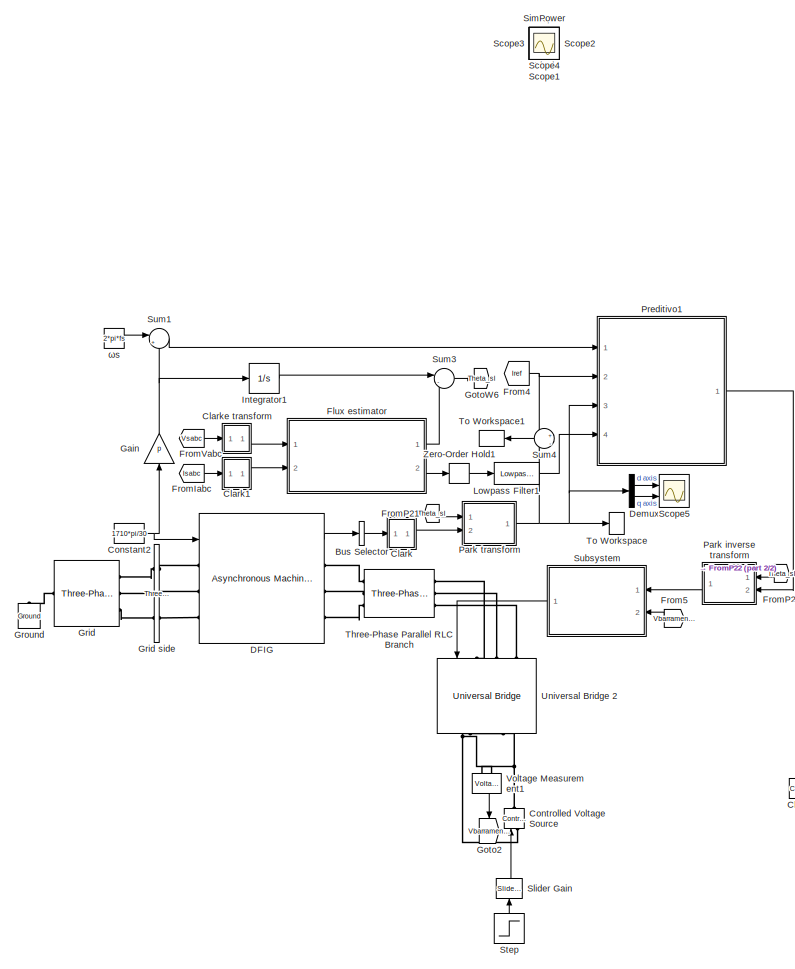
[diagram: root canvas - part 1/2, left side, full height]
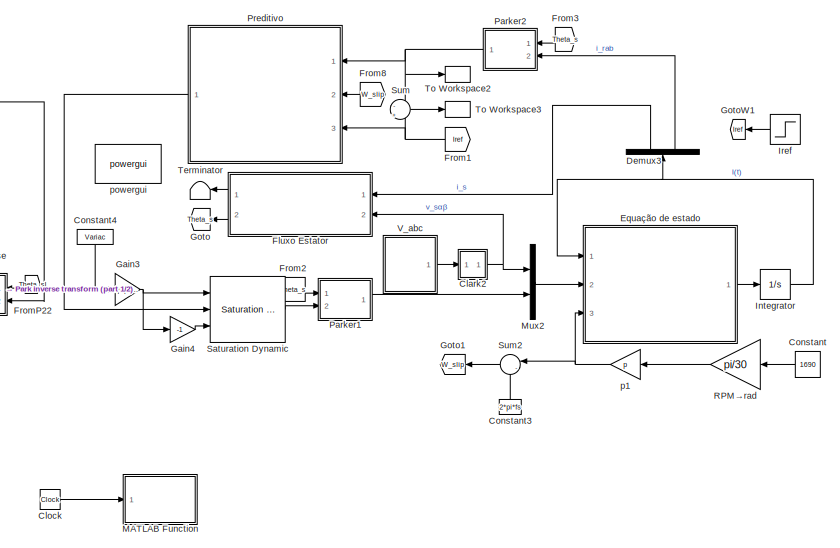
[diagram: root canvas - part 2/2, middle right region]
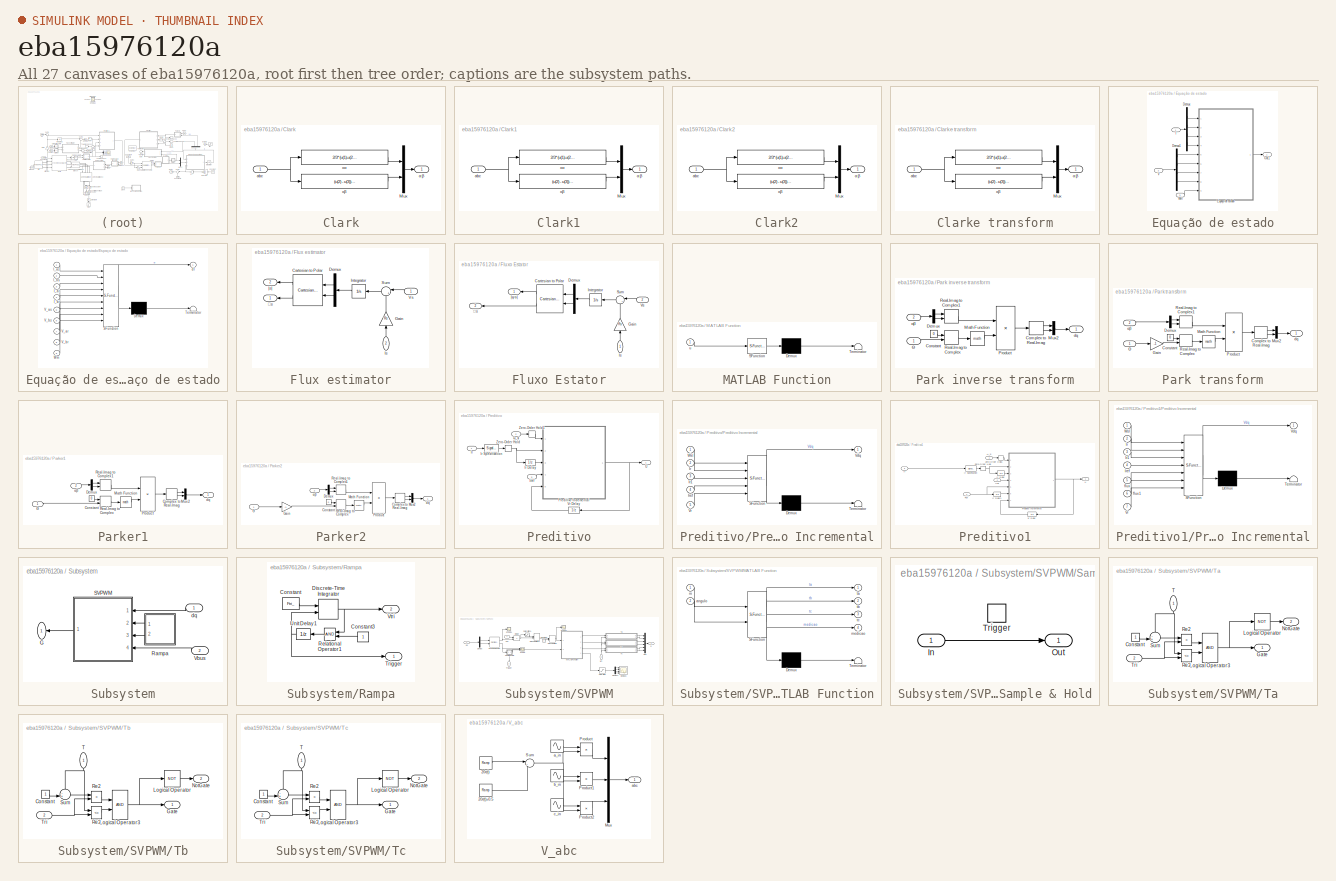
[diagram: thumbnail index - all 27 canvases of the model, root first then tree order]
MODEL slx_eba15976120a
KIND model
CONFIG AbsTol = auto
CONFIG FixedStep = auto
CONFIG MaxStep = auto
CONFIG MinStep = auto
CONFIG RelTol = 1e-3
CONFIG SampleTimeConstraint = Unconstrained
CONFIG Solver = VariableStepAuto
CONFIG SolverMode = Auto
CONFIG SolverName = VariableStepAuto
CONFIG StartTime = 0.0
CONFIG StopTime = 2
WORKSPACE source: MATLAB code (in-file)
WORKSPACE Rs = 1
WORKSPACE Vs = 220
WORKSPACE fs = 60
WORKSPACE p = 2
WORKSPACE T = 1e-4  (= 0.0001)
WORKSPACE Ts = 1e-5  (= 1e-05)
WORKSPACE Ls = 0.2010  (= 0.201)
WORKSPACE Rr = 3.122
WORKSPACE Lr = 0.2010  (= 0.201)
WORKSPACE Lm = 0.1917
WORKSPACE Ps = 3e3  (= 3000)
BLOCK [BusSelector] Bus Selector
  OutputAsBus = on
  OutputSignals = Rotor measurements.Rotor current ir_a (A),Rotor measurements.Rotor current ir_b (A),Rotor measurements.Rotor current ir_c (A)
  Ports = [1, 1]
BLOCK [SubSystem] Clark
  Ports = [1, 1]
  RequestExecContextInheritance = off
  Variant = off
BLOCK [Mux] Clark/Mux
  DisplayOption = bar
  Inputs = 2
  Ports = [2, 1]
BLOCK [Inport] Clark/abc
  IconDisplay = Port number
BLOCK [Fcn] Clark/xα
  Expr = 2/3*(u(1)-u(2)/2-u(3)/2)
BLOCK [Fcn] Clark/xβ
  Expr = (u(2) - u(3))/sqrt(3)
BLOCK [Outport] Clark/αβ
  IconDisplay = Port number
BLOCK [SubSystem] Clark1
  Ports = [1, 1]
  RequestExecContextInheritance = off
  Variant = off
BLOCK [Mux] Clark1/Mux
  DisplayOption = bar
  Inputs = 2
  Ports = [2, 1]
BLOCK [Inport] Clark1/abc
  IconDisplay = Port number
BLOCK [Fcn] Clark1/xα
  Expr = 2/3*(u(1)-u(2)/2-u(3)/2)
BLOCK [Fcn] Clark1/xβ
  Expr = (u(2) - u(3))/sqrt(3)
BLOCK [Outport] Clark1/αβ
  IconDisplay = Port number
BLOCK [SubSystem] Clark2
  Ports = [1, 1]
  RequestExecContextInheritance = off
  Variant = off
BLOCK [Mux] Clark2/Mux
  DisplayOption = bar
  Inputs = 2
  Ports = [2, 1]
BLOCK [Inport] Clark2/abc
  IconDisplay = Port number
BLOCK [Fcn] Clark2/xα
  Expr = 2/3*(u(1)-u(2)/2-u(3)/2)
BLOCK [Fcn] Clark2/xβ
  Expr = (u(2) - u(3))/sqrt(3)
BLOCK [Outport] Clark2/αβ
  IconDisplay = Port number
BLOCK [SubSystem] Clarke transform
  Ports = [1, 1]
  RequestExecContextInheritance = off
  Variant = off
BLOCK [Mux] Clarke transform/Mux
  DisplayOption = bar
  Inputs = 2
  Ports = [2, 1]
BLOCK [Inport] Clarke transform/abc
  IconDisplay = Port number
BLOCK [Fcn] Clarke transform/xα
  Expr = 2/3*(u(1)-u(2)/2-u(3)/2)
BLOCK [Fcn] Clarke transform/xβ
  Expr = (u(2) - u(3))/sqrt(3)
BLOCK [Outport] Clarke transform/αβ
  IconDisplay = Port number
BLOCK [Clock] Clock
  Commented = on
BLOCK [Constant] Constant
  Value = 1690
BLOCK [Constant] Constant2
  Value = 1710*pi/30
BLOCK [Constant] Constant3
  Value = 2*pi*fs
BLOCK [Constant] Constant4
  Value = Variac
BLOCK [Reference] Controlled Voltage Source  REF=powerlib/Electrical
Sources/Controlled Voltage Source
  Ports = [1, 0, 0, 0, 0, 1, 1]
  SourceBlock = powerlib/Electrical\nSources/Controlled Voltage Source
  SourceType = Controlled Voltage Source
BLOCK [Reference] DFIG  REF=powerlib/Machines/Asynchronous Machine
SI Units
  Ports = [1, 1, 0, 0, 0, 3, 3]
  SourceBlock = powerlib/Machines/Asynchronous Machine\nSI Units
  SourceType = Asynchronous Machine
BLOCK [Demux] Demux
  DisplayOption = bar
  Outputs = 2
  Ports = [1, 2]
BLOCK [Demux] Demux3
  DisplayOption = bar
  Outputs = 2
  Ports = [1, 2]
BLOCK [SubSystem] Equação de estado
  Ports = [3, 1]
  RequestExecContextInheritance = off
  Variant = off
BLOCK [Demux] Equação de estado/Demux
  DisplayOption = bar
  Ports = [1, 4]
BLOCK [Demux] Equação de estado/Demux1
  DisplayOption = bar
  Ports = [1, 4]
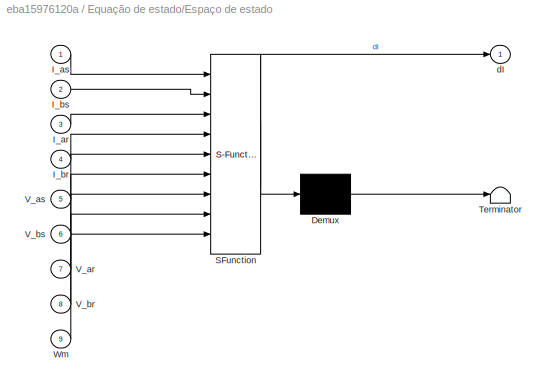
BLOCK [SubSystem] Equação de estado/Espaço de estado
  ErrorFcn = Stateflow.Translate.translate
  PermitHierarchicalResolution = ExplicitOnly
  Ports = [9, 1]
  RequestExecContextInheritance = off
  SFBlockType = MATLAB Function
  TreatAsAtomicUnit = on
  Variant = off
BLOCK [Demux] Equação de estado/Espaço de estado/ Demux 
  Outputs = 1
  Ports = [1, 1]
BLOCK [S-Function] Equação de estado/Espaço de estado/ SFunction 
  EnableBusSupport = on
  FunctionName = sf_sfun
  Parameters = Lm,Lr,Ls,Rr,Rs,dLm,dRr
  PortCounts = [9 2]
  Ports = [9, 2]
  SFunctionDeploymentMode = off
  Tag = Stateflow S-Function dfig 1
BLOCK [Terminator] Equação de estado/Espaço de estado/ Terminator 
BLOCK [Inport] Equação de estado/Espaço de estado/I_ar
  IconDisplay = Port number
  Port = 3
BLOCK [Inport] Equação de estado/Espaço de estado/I_as
  IconDisplay = Port number
BLOCK [Inport] Equação de estado/Espaço de estado/I_br
  IconDisplay = Port number
  Port = 4
BLOCK [Inport] Equação de estado/Espaço de estado/I_bs
  IconDisplay = Port number
  Port = 2
BLOCK [Inport] Equação de estado/Espaço de estado/V_ar
  IconDisplay = Port number
  Port = 7
BLOCK [Inport] Equação de estado/Espaço de estado/V_as
  IconDisplay = Port number
  Port = 5
BLOCK [Inport] Equação de estado/Espaço de estado/V_br
  IconDisplay = Port number
  Port = 8
BLOCK [Inport] Equação de estado/Espaço de estado/V_bs
  IconDisplay = Port number
  Port = 6
BLOCK [Inport] Equação de estado/Espaço de estado/Wm
  IconDisplay = Port number
  Port = 9
BLOCK [Outport] Equação de estado/Espaço de estado/dI
  IconDisplay = Port number
BLOCK [Inport] Equação de estado/I
  IconDisplay = Port number
BLOCK [Outport] Equação de estado/Out1
  IconDisplay = Port number
BLOCK [Inport] Equação de estado/V
  IconDisplay = Port number
  Port = 2
BLOCK [Inport] Equação de estado/Wm
  IconDisplay = Port number
  Port = 3
BLOCK [SubSystem] Flux estimator
  Ports = [2, 2]
  RequestExecContextInheritance = off
  Variant = off
BLOCK [Reference] Flux estimator/Cartesian to Polar  REF=simulink_extras/Transformations/Cartesian to
Polar
  Ports = [2, 2]
  SourceBlock = simulink_extras/Transformations/Cartesian to\nPolar
  SourceType = Cart2Polar
BLOCK [Demux] Flux estimator/Demux
  DisplayOption = bar
  Outputs = 2
  Ports = [1, 2]
BLOCK [Gain] Flux estimator/Gain
  Gain = Rs
  OutDataTypeStr = Inherit: Inherit via internal rule
  ParamDataTypeStr = Inherit: Inherit via internal rule
  SaturateOnIntegerOverflow = off
BLOCK [Integrator] Flux estimator/Integrator
  Ports = [1, 1]
BLOCK [Inport] Flux estimator/Is
  IconDisplay = Port number
  Port = 2
BLOCK [Sum] Flux estimator/Sum
  IconShape = round
  InputSameDT = off
  Inputs = |+-
  OutDataTypeStr = Inherit: Inherit via internal rule
  Ports = [2, 1]
  SaturateOnIntegerOverflow = off
BLOCK [Inport] Flux estimator/Vs
  IconDisplay = Port number
BLOCK [Outport] Flux estimator/|s|
  IconDisplay = Port number
  Port = 2
BLOCK [Outport] Flux estimator/∠s
  IconDisplay = Port number
BLOCK [SubSystem] Fluxo Estator
  Ports = [2, 2]
  RequestExecContextInheritance = off
  Variant = off
BLOCK [Reference] Fluxo Estator/Cartesian to Polar  REF=simulink_extras/Transformations/Cartesian to
Polar
  Ports = [2, 2]
  SourceBlock = simulink_extras/Transformations/Cartesian to\nPolar
  SourceType = Cart2Polar
BLOCK [Demux] Fluxo Estator/Demux
  DisplayOption = bar
  Outputs = 2
  Ports = [1, 2]
BLOCK [Gain] Fluxo Estator/Gain
  Gain = Rs
  OutDataTypeStr = Inherit: Inherit via internal rule
  ParamDataTypeStr = Inherit: Inherit via internal rule
  SaturateOnIntegerOverflow = off
BLOCK [Integrator] Fluxo Estator/Integrator
  Ports = [1, 1]
BLOCK [Inport] Fluxo Estator/Is
  IconDisplay = Port number
BLOCK [Sum] Fluxo Estator/Sum
  IconShape = round
  InputSameDT = off
  Inputs = |+-
  OutDataTypeStr = Inherit: Inherit via internal rule
  Ports = [2, 1]
  SaturateOnIntegerOverflow = off
BLOCK [Inport] Fluxo Estator/Vs
  IconDisplay = Port number
  Port = 2
BLOCK [Outport] Fluxo Estator/|ψs|
  IconDisplay = Port number
BLOCK [Outport] Fluxo Estator/∠s
  IconDisplay = Port number
  Port = 2
BLOCK [From] From1
  GotoTag = Iref
BLOCK [From] From2
  GotoTag = Theta_s
BLOCK [From] From3
  GotoTag = Theta_s
BLOCK [From] From4
  GotoTag = Iref
BLOCK [From] From5
  GotoTag = Vbarramento
BLOCK [From] From8
  GotoTag = W_slip
BLOCK [From] FromIabc
  GotoTag = Isabc
  TagVisibility = global
BLOCK [From] FromP21
  GotoTag = Theta_sl
  IconDisplay = Signal name
BLOCK [From] FromP22
  GotoTag = Theta_sl
  IconDisplay = Signal name
BLOCK [From] FromVabc
  GotoTag = Vsabc
  TagVisibility = global
BLOCK [Gain] Gain
  Gain = p
  OutDataTypeStr = Inherit: Inherit via internal rule
  ParamDataTypeStr = Inherit: Inherit via internal rule
  SaturateOnIntegerOverflow = off
BLOCK [Gain] Gain3
  Gain = sqrt(3)*pi/3
  OutDataTypeStr = Inherit: Inherit via internal rule
  ParamDataTypeStr = Inherit: Inherit via internal rule
  SaturateOnIntegerOverflow = off
BLOCK [Gain] Gain4
  Gain = -1
  OutDataTypeStr = Inherit: Inherit via internal rule
  ParamDataTypeStr = Inherit: Inherit via internal rule
  SaturateOnIntegerOverflow = off
BLOCK [Goto] Goto
  GotoTag = Theta_s
BLOCK [Goto] Goto1
  GotoTag = W_slip
BLOCK [Goto] Goto2
  GotoTag = Vbarramento
BLOCK [Goto] GotoW1
  GotoTag = Iref
BLOCK [Goto] GotoW6
  GotoTag = Theta_sl
BLOCK [Reference] Grid  REF=powerlib/Electrical
Sources/Three-Phase
Programmable
Voltage Source
  Ports = [0, 0, 0, 0, 0, 1, 3]
  SourceBlock = powerlib/Electrical\nSources/Three-Phase\nProgrammable\nVoltage Source
  SourceType = Three-Phase Programmable Voltage Source
BLOCK [Reference] Grid side  REF=powerlib/Measurements/Three-Phase
V-I Measurement
  Ports = [0, 0, 0, 0, 0, 3, 3]
  SourceBlock = powerlib/Measurements/Three-Phase\nV-I Measurement
  SourceType = Three-Phase VI Measurement
BLOCK [Reference] Ground  REF=powerlib/Elements/Ground
  Ports = [0, 0, 0, 0, 0, 1]
  SourceBlock = powerlib/Elements/Ground
  SourceType = Ground
BLOCK [Scope] Ideal
  IOType = viewer
  Ports = []
  ScopeSpecificationString = Simulink.scopes.TimeScopeBlockCfg('CurrentConfiguration', extmgr.ConfigurationSet(extmgr.Configuration('Core','General UI',true),extmgr.Configuration('Core','Source UI',true),extmgr.Configuration('Sources','WiredSimulink',true,'DataLoggingVariableName','ScopeData1'),extmgr.Configuration('Visuals','Time Domain',true,'SerializedDisplays',{struct('MinYLimReal','-10.00000','MaxYLimReal','10.00000','YL...<+1962ch>
BLOCK [Integrator] Integrator
  LimitOutput = on
  LowerSaturationLimit = -1e5
  Ports = [1, 1]
  UpperSaturationLimit = 1e5
BLOCK [Integrator] Integrator1
  Ports = [1, 1]
BLOCK [Step] Iref
  After = StepFinal
  Before = StepInit
  SampleTime = 0
  Time = StepTime
BLOCK [Reference] Lowpass Filter1  REF=dspfdesign/Lowpass Filter
  Ports = [1, 1]
  SourceBlock = dspfdesign/Lowpass Filter
  SourceType = dsp.LowpassFilter
BLOCK [SubSystem] MATLAB Function
  Commented = on
  ErrorFcn = Stateflow.Translate.translate
  PermitHierarchicalResolution = ExplicitOnly
  Ports = [1]
  RequestExecContextInheritance = off
  SFBlockType = MATLAB Function
  TreatAsAtomicUnit = on
  Variant = off
BLOCK [Demux] MATLAB Function/ Demux 
  Outputs = 1
  Ports = [1, 1]
BLOCK [S-Function] MATLAB Function/ SFunction 
  EnableBusSupport = on
  FunctionName = sf_sfun
  PortCounts = [1 1]
  Ports = [1, 1]
  SFunctionDeploymentMode = off
  Tag = Stateflow S-Function dfig 5
BLOCK [Terminator] MATLAB Function/ Terminator 
BLOCK [Inport] MATLAB Function/u
  IconDisplay = Port number
BLOCK [Mux] Mux2
  DisplayOption = bar
  Inputs = 2
  Ports = [2, 1]
BLOCK [SubSystem] Park inverse transform
  Ports = [2, 1]
  RequestExecContextInheritance = off
  Variant = off
BLOCK [ComplexToRealImag] Park inverse transform/Complex to Real-Imag
  Ports = [1, 2]
BLOCK [Constant] Park inverse transform/Constant
  Value = 0
BLOCK [Demux] Park inverse transform/Demux
  DisplayOption = bar
  Outputs = 2
  Ports = [1, 2]
BLOCK [Math] Park inverse transform/Math Function
  Ports = [1, 1]
BLOCK [Mux] Park inverse transform/Mux2
  DisplayOption = bar
  Inputs = 2
  Ports = [2, 1]
BLOCK [Product] Park inverse transform/Product
  InputSameDT = off
  OutDataTypeStr = Inherit: Inherit via internal rule
  Ports = [2, 1]
  RndMeth = Floor
  SaturateOnIntegerOverflow = off
BLOCK [RealImagToComplex] Park inverse transform/Real-Imag to Complex
  Ports = [2, 1]
BLOCK [RealImagToComplex] Park inverse transform/Real-Imag to Complex1
  Ports = [2, 1]
BLOCK [Outport] Park inverse transform/dq
  IconDisplay = Port number
BLOCK [Inport] Park inverse transform/Θ
  IconDisplay = Port number
BLOCK [Inport] Park inverse transform/αβ
  IconDisplay = Port number
  Port = 2
BLOCK [SubSystem] Park transform
  Ports = [2, 1]
  RequestExecContextInheritance = off
  Variant = off
BLOCK [ComplexToRealImag] Park transform/Complex to Real-Imag
  Ports = [1, 2]
BLOCK [Constant] Park transform/Constant
  Value = 0
BLOCK [Demux] Park transform/Demux
  DisplayOption = bar
  Outputs = 2
  Ports = [1, 2]
BLOCK [Gain] Park transform/Gain
  Gain = -1
  OutDataTypeStr = Inherit: Inherit via internal rule
  ParamDataTypeStr = Inherit: Inherit via internal rule
  SaturateOnIntegerOverflow = off
BLOCK [Math] Park transform/Math Function
  Ports = [1, 1]
BLOCK [Mux] Park transform/Mux2
  DisplayOption = bar
  Inputs = 2
  Ports = [2, 1]
BLOCK [Product] Park transform/Product
  InputSameDT = off
  OutDataTypeStr = Inherit: Inherit via internal rule
  Ports = [2, 1]
  RndMeth = Floor
  SaturateOnIntegerOverflow = off
BLOCK [RealImagToComplex] Park transform/Real-Imag to Complex
  Ports = [2, 1]
BLOCK [RealImagToComplex] Park transform/Real-Imag to Complex1
  Ports = [2, 1]
BLOCK [Outport] Park transform/dq
  IconDisplay = Port number
BLOCK [Inport] Park transform/Θ
  IconDisplay = Port number
BLOCK [Inport] Park transform/αβ
  IconDisplay = Port number
  Port = 2
BLOCK [SubSystem] Parker1
  Ports = [2, 1]
  RequestExecContextInheritance = off
  Variant = off
BLOCK [ComplexToRealImag] Parker1/Complex to Real-Imag
  Ports = [1, 2]
BLOCK [Constant] Parker1/Constant
  Value = 0
BLOCK [Demux] Parker1/Demux
  DisplayOption = bar
  Outputs = 2
  Ports = [1, 2]
BLOCK [Math] Parker1/Math Function
  Ports = [1, 1]
BLOCK [Mux] Parker1/Mux2
  DisplayOption = bar
  Inputs = 2
  Ports = [2, 1]
BLOCK [Product] Parker1/Product
  InputSameDT = off
  OutDataTypeStr = Inherit: Inherit via internal rule
  Ports = [2, 1]
  RndMeth = Floor
  SaturateOnIntegerOverflow = off
BLOCK [RealImagToComplex] Parker1/Real-Imag to Complex
  Ports = [2, 1]
BLOCK [RealImagToComplex] Parker1/Real-Imag to Complex1
  Ports = [2, 1]
BLOCK [Outport] Parker1/dq
  IconDisplay = Port number
BLOCK [Inport] Parker1/Θ
  IconDisplay = Port number
BLOCK [Inport] Parker1/αβ
  IconDisplay = Port number
  Port = 2
BLOCK [SubSystem] Parker2
  Ports = [2, 1]
  RequestExecContextInheritance = off
  Variant = off
BLOCK [ComplexToRealImag] Parker2/Complex to Real-Imag
  Ports = [1, 2]
BLOCK [Constant] Parker2/Constant
  Value = 0
BLOCK [Demux] Parker2/Demux
  DisplayOption = bar
  Outputs = 2
  Ports = [1, 2]
BLOCK [Gain] Parker2/Gain
  Gain = -1
  OutDataTypeStr = Inherit: Inherit via internal rule
  ParamDataTypeStr = Inherit: Inherit via internal rule
  SaturateOnIntegerOverflow = off
BLOCK [Math] Parker2/Math Function
  Ports = [1, 1]
BLOCK [Mux] Parker2/Mux2
  DisplayOption = bar
  Inputs = 2
  Ports = [2, 1]
BLOCK [Product] Parker2/Product
  InputSameDT = off
  OutDataTypeStr = Inherit: Inherit via internal rule
  Ports = [2, 1]
  RndMeth = Floor
  SaturateOnIntegerOverflow = off
BLOCK [RealImagToComplex] Parker2/Real-Imag to Complex
  Ports = [2, 1]
BLOCK [RealImagToComplex] Parker2/Real-Imag to Complex1
  Ports = [2, 1]
BLOCK [Outport] Parker2/dq
  IconDisplay = Port number
BLOCK [Inport] Parker2/Θ
  IconDisplay = Port number
BLOCK [Inport] Parker2/αβ
  IconDisplay = Port number
  Port = 2
BLOCK [SubSystem] Preditivo
  Ports = [3, 1]
  RequestExecContextInheritance = off
  Variant = off
BLOCK [Inport] Preditivo/ ω_sl
  IconDisplay = Port number
  Port = 2
BLOCK [Inport] Preditivo/Ir
  IconDisplay = Port number
BLOCK [UnitDelay] Preditivo/Ir Delay
  SampleTime = -1
BLOCK [SignalSpecification] Preditivo/Ir Specification
  Dimensions = 2
BLOCK [Inport] Preditivo/Iref
  IconDisplay = Port number
  Port = 3
BLOCK [SubSystem] Preditivo/Preditivo Incremental
  ErrorFcn = Stateflow.Translate.translate
  PermitHierarchicalResolution = ExplicitOnly
  Ports = [5, 1]
  RequestExecContextInheritance = off
  SFBlockType = MATLAB Function
  SystemSampleTime = T
  TreatAsAtomicUnit = on
  Variant = off
BLOCK [Demux] Preditivo/Preditivo Incremental/ Demux 
  Outputs = 1
  Ports = [1, 1]
BLOCK [S-Function] Preditivo/Preditivo Incremental/ SFunction 
  EnableBusSupport = on
  FunctionName = sf_sfun
  Parameters = Lm,Lr,Ls,Nu,Ny,Rr,T,Wup,Wyp
  PortCounts = [5 2]
  Ports = [5, 2]
  SFunctionDeploymentMode = off
  Tag = Stateflow S-Function dfig 3
BLOCK [Terminator] Preditivo/Preditivo Incremental/ Terminator 
BLOCK [Inport] Preditivo/Preditivo Incremental/Ir
  IconDisplay = Port number
  Port = 2
BLOCK [Inport] Preditivo/Preditivo Incremental/Ir1
  IconDisplay = Port number
  Port = 3
BLOCK [Inport] Preditivo/Preditivo Incremental/Iref
  IconDisplay = Port number
  Port = 4
BLOCK [Outport] Preditivo/Preditivo Incremental/Vdq
  IconDisplay = Port number
BLOCK [Inport] Preditivo/Preditivo Incremental/Vr
  IconDisplay = Port number
  Port = 5
BLOCK [Inport] Preditivo/Preditivo Incremental/Wsl
  IconDisplay = Port number
BLOCK [Outport] Preditivo/U
  IconDisplay = Port number
BLOCK [UnitDelay] Preditivo/Vr Delay
  SampleTime = -1
BLOCK [ZeroOrderHold] Preditivo/Zero-Order Hold
  SampleTime = T
BLOCK [ZeroOrderHold] Preditivo/Zero-Order Hold1
  SampleTime = T
BLOCK [SubSystem] Preditivo1
  Ports = [4, 1]
  RequestExecContextInheritance = off
  Variant = off
BLOCK [Inport] Preditivo1/ ω_sl
  IconDisplay = Port number
BLOCK [Inport] Preditivo1/Flux
  IconDisplay = Port number
  Port = 4
BLOCK [Inport] Preditivo1/Ir
  IconDisplay = Port number
  Port = 3
BLOCK [UnitDelay] Preditivo1/Ir Delay
  SampleTime = -1
BLOCK [UnitDelay] Preditivo1/Ir Delay1
  SampleTime = -1
BLOCK [SignalSpecification] Preditivo1/Ir Specification
  Dimensions = 2
BLOCK [Inport] Preditivo1/Iref
  IconDisplay = Port number
  Port = 2
BLOCK [SubSystem] Preditivo1/Preditivo Incremental
  ErrorFcn = Stateflow.Translate.translate
  PermitHierarchicalResolution = ExplicitOnly
  Ports = [7, 1]
  RequestExecContextInheritance = off
  SFBlockType = MATLAB Function
  SystemSampleTime = T
  TreatAsAtomicUnit = on
  Variant = off
BLOCK [Demux] Preditivo1/Preditivo Incremental/ Demux 
  Outputs = 1
  Ports = [1, 1]
BLOCK [S-Function] Preditivo1/Preditivo Incremental/ SFunction 
  EnableBusSupport = on
  FunctionName = sf_sfun
  Parameters = Lm,Lr,Ls,Nu,Ny,Rr,T,Wup,Wyp
  PortCounts = [7 2]
  Ports = [7, 2]
  SFunctionDeploymentMode = off
  Tag = Stateflow S-Function dfig 4
BLOCK [Terminator] Preditivo1/Preditivo Incremental/ Terminator 
BLOCK [Inport] Preditivo1/Preditivo Incremental/Ir
  IconDisplay = Port number
  Port = 2
BLOCK [Inport] Preditivo1/Preditivo Incremental/Ir1
  IconDisplay = Port number
  Port = 3
BLOCK [Inport] Preditivo1/Preditivo Incremental/Iref
  IconDisplay = Port number
  Port = 4
BLOCK [Outport] Preditivo1/Preditivo Incremental/Vdq
  IconDisplay = Port number
BLOCK [Inport] Preditivo1/Preditivo Incremental/Vr
  IconDisplay = Port number
  Port = 7
BLOCK [Inport] Preditivo1/Preditivo Incremental/Wsl
  IconDisplay = Port number
BLOCK [Inport] Preditivo1/Preditivo Incremental/flux
  IconDisplay = Port number
  Port = 5
BLOCK [Inport] Preditivo1/Preditivo Incremental/flux1
  IconDisplay = Port number
  Port = 6
BLOCK [Outport] Preditivo1/U
  IconDisplay = Port number
BLOCK [UnitDelay] Preditivo1/Vr Delay
  SampleTime = -1
BLOCK [ZeroOrderHold] Preditivo1/Zero-Order Hold
  SampleTime = T
BLOCK [ZeroOrderHold] Preditivo1/Zero-Order Hold1
  SampleTime = T
BLOCK [Gain] RPM→rad
  Gain = pi/30
  OutDataTypeStr = Inherit: Inherit via internal rule
  ParamDataTypeStr = Inherit: Inherit via internal rule
  SaturateOnIntegerOverflow = off
BLOCK [Reference] Saturation Dynamic  REF=simulink/Discontinuities/Saturation
Dynamic
  Ports = [3, 1]
  SourceBlock = simulink/Discontinuities/Saturation\nDynamic
  SourceType = Saturation Dynamic
BLOCK [Scope] Scope
  IOType = viewer
  Ports = []
  ScopeSpecificationString = Simulink.scopes.TimeScopeBlockCfg('CurrentConfiguration', extmgr.ConfigurationSet(extmgr.Configuration('Core','General UI',true),extmgr.Configuration('Core','Source UI',true),extmgr.Configuration('Sources','WiredSimulink',true,'DataLoggingVariableName','ScopeData1'),extmgr.Configuration('Visuals','Time Domain',true,'SerializedDisplays',{struct('MinYLimReal','-0.12065','MaxYLimReal','1.08585','YLab...<+1403ch>
BLOCK [Scope] Scope1
  IOType = viewer
  Ports = []
  ScopeSpecificationString = Simulink.scopes.TimeScopeBlockCfg('CurrentConfiguration', extmgr.ConfigurationSet(extmgr.Configuration('Core','General UI',true),extmgr.Configuration('Core','Source UI',true),extmgr.Configuration('Sources','WiredSimulink',true,'DataLoggingVariableName','ScopeData2'),extmgr.Configuration('Visuals','Time Domain',true,'SerializedDisplays',{struct('MinYLimReal','-0.58067','MaxYLimReal','5.22605','YLab...<+1430ch>
BLOCK [Scope] Scope2
  IOType = viewer
  Ports = []
  ScopeSpecificationString = Simulink.scopes.TimeScopeBlockCfg('CurrentConfiguration', extmgr.ConfigurationSet(extmgr.Configuration('Core','General UI',true),extmgr.Configuration('Core','Source UI',true),extmgr.Configuration('Sources','WiredSimulink',true,'DataLoggingVariableName','ScopeData3'),extmgr.Configuration('Visuals','Time Domain',true,'SerializedDisplays',{struct('MinYLimReal','-134701.21577','MaxYLimReal','367101.14...<+1443ch>
BLOCK [Scope] Scope3
  IOType = viewer
  Ports = []
  ScopeSpecificationString = Simulink.scopes.TimeScopeBlockCfg('CurrentConfiguration', extmgr.ConfigurationSet(extmgr.Configuration('Core','General UI',true),extmgr.Configuration('Core','Source UI',true),extmgr.Configuration('Sources','WiredSimulink',true,'DataLoggingVariableName','ScopeData4'),extmgr.Configuration('Visuals','Time Domain',true,'SerializedDisplays',{struct('MinYLimReal','-62.24076','MaxYLimReal','58.27322','YL...<+1457ch>
BLOCK [Scope] Scope4
  IOType = viewer
  Ports = []
  ScopeSpecificationString = Simulink.scopes.TimeScopeBlockCfg('CurrentConfiguration', extmgr.ConfigurationSet(extmgr.Configuration('Core','General UI',true),extmgr.Configuration('Core','Source UI',true),extmgr.Configuration('Sources','WiredSimulink',true,'DataLoggingVariableName','ScopeData5'),extmgr.Configuration('Visuals','Time Domain',true,'SerializedDisplays',{struct('MinYLimReal','833.98419','MaxYLimReal','6140.49161','...<+1472ch>
BLOCK [Scope] Scope5
  NumInputPorts = 2
  Ports = [2]
  ScopeSpecificationString = Simulink.scopes.TimeScopeBlockCfg('CurrentConfiguration', extmgr.ConfigurationSet(extmgr.Configuration('Core','General UI',true),extmgr.Configuration('Core','Source UI',true),extmgr.Configuration('Sources','WiredSimulink',true,'DataLoggingVariableName','ScopeData1'),extmgr.Configuration('Visuals','Time Domain',true,'SerializedDisplays',{struct('MinYLimReal','0.5338','MaxYLimReal','3.77351','YLabel...<+2020ch>
BLOCK [Scope] SimPower
  IOType = viewer
  Ports = []
  ScopeSpecificationString = Simulink.scopes.TimeScopeBlockCfg('CurrentConfiguration', extmgr.ConfigurationSet(extmgr.Configuration('Core','General UI',true),extmgr.Configuration('Core','Source UI',true),extmgr.Configuration('Sources','WiredSimulink',true,'DataLoggingVariableName','ScopeData1'),extmgr.Configuration('Visuals','Time Domain',true,'SerializedDisplays',{struct('MinYLimReal','-0.79449','MaxYLimReal','2.37954','YLab...<+2072ch>
BLOCK [Reference] Slider Gain  REF=simulink/Math
Operations/Slider
Gain
  Ports = [1, 1]
  SourceBlock = simulink/Math\nOperations/Slider\nGain
  SourceType = Slider Gain
BLOCK [Step] Step
  Before = 1e-4
  SampleTime = 0
  Time = 0
BLOCK [SubSystem] Subsystem
  Ports = [2, 1]
  RequestExecContextInheritance = off
  Variant = off
BLOCK [Outport] Subsystem/G
  IconDisplay = Port number
BLOCK [SubSystem] Subsystem/Rampa
  Ports = [0, 2]
  RequestExecContextInheritance = off
  Variant = off
BLOCK [Constant] Subsystem/Rampa/Constant
  Value = Ftri_
BLOCK [Constant] Subsystem/Rampa/Constant3
BLOCK [DiscreteIntegrator] Subsystem/Rampa/Discrete-Time Integrator
  ExternalReset = rising
  ICPrevOutput = DiscIntNeverNeededParam
  ICPrevScaledInput = DiscIntNeverNeededParam
  InitialConditionSetting = State (most efficient)
  Ports = [2, 1]
  SampleTime = Ts
BLOCK [RelationalOperator] Subsystem/Rampa/Relational Operator1
  Ports = [2, 1]
BLOCK [Outport] Subsystem/Rampa/Trigger
  IconDisplay = Port number
BLOCK [UnitDelay] Subsystem/Rampa/Unit Delay1
  SampleTime = Ts
BLOCK [Outport] Subsystem/Rampa/Vtri
  IconDisplay = Port number
  Port = 2
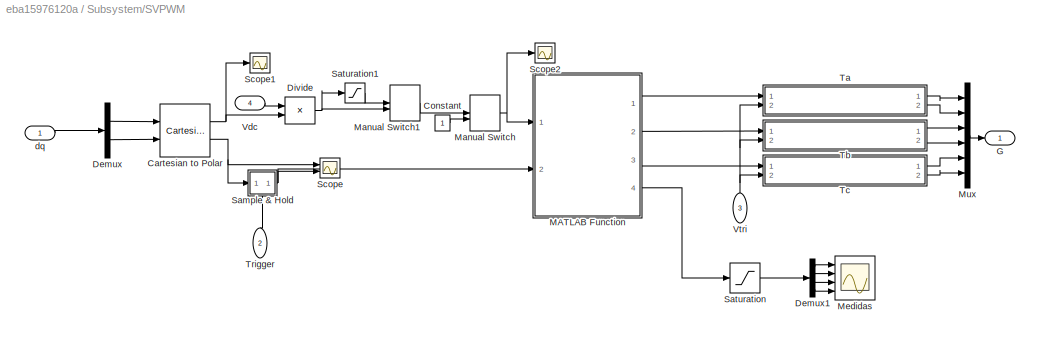
BLOCK [SubSystem] Subsystem/SVPWM
  Ports = [4, 1]
  RequestExecContextInheritance = off
  Variant = off
BLOCK [Reference] Subsystem/SVPWM/Cartesian to Polar  REF=simulink_extras/Transformations/Cartesian to
Polar
  Ports = [2, 2]
  SourceBlock = simulink_extras/Transformations/Cartesian to\nPolar
  SourceType = Cart2Polar
BLOCK [Constant] Subsystem/SVPWM/Constant
BLOCK [Demux] Subsystem/SVPWM/Demux
  DisplayOption = bar
  Outputs = 2
  Ports = [1, 2]
BLOCK [Demux] Subsystem/SVPWM/Demux1
  DisplayOption = bar
  Ports = [1, 4]
BLOCK [Product] Subsystem/SVPWM/Divide
  InputSameDT = off
  Inputs = /*
  OutDataTypeStr = Inherit: Inherit via internal rule
  Ports = [2, 1]
  RndMeth = Floor
  SaturateOnIntegerOverflow = off
BLOCK [Outport] Subsystem/SVPWM/G
  IconDisplay = Port number
BLOCK [SubSystem] Subsystem/SVPWM/MATLAB Function
  ErrorFcn = Stateflow.Translate.translate
  PermitHierarchicalResolution = ExplicitOnly
  Ports = [2, 4]
  RequestExecContextInheritance = off
  SFBlockType = MATLAB Function
  TreatAsAtomicUnit = on
  Variant = off
BLOCK [Demux] Subsystem/SVPWM/MATLAB Function/ Demux 
  Outputs = 1
  Ports = [1, 1]
BLOCK [S-Function] Subsystem/SVPWM/MATLAB Function/ SFunction 
  EnableBusSupport = on
  FunctionName = sf_sfun
  PortCounts = [2 5]
  Ports = [2, 5]
  SFunctionDeploymentMode = off
  Tag = Stateflow S-Function dfig 2
BLOCK [Terminator] Subsystem/SVPWM/MATLAB Function/ Terminator 
BLOCK [Inport] Subsystem/SVPWM/MATLAB Function/angulo
  IconDisplay = Port number
  Port = 2
BLOCK [Inport] Subsystem/SVPWM/MATLAB Function/m
  IconDisplay = Port number
BLOCK [Outport] Subsystem/SVPWM/MATLAB Function/medicao
  IconDisplay = Port number
  Port = 4
BLOCK [Outport] Subsystem/SVPWM/MATLAB Function/ta
  IconDisplay = Port number
BLOCK [Outport] Subsystem/SVPWM/MATLAB Function/tb
  IconDisplay = Port number
  Port = 2
BLOCK [Outport] Subsystem/SVPWM/MATLAB Function/tc
  IconDisplay = Port number
  Port = 3
BLOCK [ManualSwitch] Subsystem/SVPWM/Manual Switch
BLOCK [ManualSwitch] Subsystem/SVPWM/Manual Switch1
  CurrentSetting = 0
BLOCK [Scope] Subsystem/SVPWM/Medidas
  NumInputPorts = 4
  Ports = [4]
  ScopeSpecificationString = Simulink.scopes.TimeScopeBlockCfg('CurrentConfiguration', extmgr.ConfigurationSet(extmgr.Configuration('Core','General UI',true),extmgr.Configuration('Core','Source UI',true),extmgr.Configuration('Sources','WiredSimulink',true,'DataLoggingVariableName','ScopeData3'),extmgr.Configuration('Visuals','Time Domain',true,'SerializedDisplays',{struct('MinYLimReal','-0.03115','MaxYLimReal','0.28038','YLab...<+3440ch>
BLOCK [Mux] Subsystem/SVPWM/Mux
  DisplayOption = bar
  Inputs = 6
  Ports = [6, 1]
BLOCK [SubSystem] Subsystem/SVPWM/Sample & Hold
  Ports = [1, 1, 0, 1]
  RequestExecContextInheritance = off
  Variant = off
BLOCK [Inport] Subsystem/SVPWM/Sample & Hold/In
  IconDisplay = Port number
BLOCK [Outport] Subsystem/SVPWM/Sample & Hold/Out
  IconDisplay = Port number
BLOCK [TriggerPort] Subsystem/SVPWM/Sample & Hold/Trigger
  PortDimensions = 1
  Ports = []
  StatesWhenEnabling = held
  VariantControl = Variant
BLOCK [Saturate] Subsystem/SVPWM/Saturation
  InputPortMap = u0
  Ports = [1, 1]
  UpperLimit = 2
BLOCK [Saturate] Subsystem/SVPWM/Saturation1
  InputPortMap = u0
  LowerLimit = 0
  Ports = [1, 1]
  UpperLimit = 1
BLOCK [Scope] Subsystem/SVPWM/Scope
  NumInputPorts = 2
  Ports = [2]
  ScopeSpecificationString = Simulink.scopes.TimeScopeBlockCfg('CurrentConfiguration', extmgr.ConfigurationSet(extmgr.Configuration('Core','General UI',true),extmgr.Configuration('Core','Source UI',true),extmgr.Configuration('Sources','WiredSimulink',true,'DataLoggingVariableName','ScopeData4'),extmgr.Configuration('Visuals','Time Domain',true,'SerializedDisplays',{struct('MinYLimReal','-3.92027','MaxYLimReal','3.91047','YLab...<+1441ch>
BLOCK [Scope] Subsystem/SVPWM/Scope1
  Ports = [1]
  ScopeSpecificationString = Simulink.scopes.TimeScopeBlockCfg('CurrentConfiguration', extmgr.ConfigurationSet(extmgr.Configuration('Core','General UI',true),extmgr.Configuration('Core','Source UI',true),extmgr.Configuration('Sources','WiredSimulink',true,'DataLoggingVariableName','ScopeData2'),extmgr.Configuration('Visuals','Time Domain',true,'SerializedDisplays',{struct('MinYLimReal','-225.775','MaxYLimReal','-116.025','YLa...<+1454ch>
BLOCK [Scope] Subsystem/SVPWM/Scope2
  Ports = [1]
  ScopeSpecificationString = Simulink.scopes.TimeScopeBlockCfg('CurrentConfiguration', extmgr.ConfigurationSet(extmgr.Configuration('Core','General UI',true),extmgr.Configuration('Core','Source UI',true),extmgr.Configuration('Sources','WiredSimulink',true,'DataLoggingVariableName','ScopeData1'),extmgr.Configuration('Visuals','Time Domain',true,'SerializedDisplays',{struct('MinYLimReal','-225.775','MaxYLimReal','-116.025','YLa...<+1437ch>
BLOCK [SubSystem] Subsystem/SVPWM/Ta
  Ports = [2, 2]
  RequestExecContextInheritance = off
  Variant = off
BLOCK [Constant] Subsystem/SVPWM/Ta/Constant
BLOCK [Outport] Subsystem/SVPWM/Ta/Gate
  IconDisplay = Port number
BLOCK [Logic] Subsystem/SVPWM/Ta/Logical Operator
  AllPortsSameDT = off
  Operator = NOT
  OutDataTypeStr = boolean
  Ports = [1, 1]
BLOCK [Logic] Subsystem/SVPWM/Ta/Logical Operator3
  AllPortsSameDT = off
  OutDataTypeStr = boolean
  Ports = [2, 1]
BLOCK [Outport] Subsystem/SVPWM/Ta/NotGate
  IconDisplay = Port number
  Port = 2
BLOCK [RelationalOperator] Subsystem/SVPWM/Ta/Re2
  InputSameDT = off
  Operator = >
  OutDataTypeStr = boolean
  Ports = [2, 1]
BLOCK [RelationalOperator] Subsystem/SVPWM/Ta/Re3
  InputSameDT = off
  Operator = <=
  OutDataTypeStr = boolean
  Ports = [2, 1]
BLOCK [Sum] Subsystem/SVPWM/Ta/Sum
  IconShape = round
  InputSameDT = off
  Inputs = -+|
  OutDataTypeStr = Inherit: Inherit via internal rule
  Ports = [2, 1]
  SaturateOnIntegerOverflow = off
BLOCK [Inport] Subsystem/SVPWM/Ta/T
  IconDisplay = Port number
BLOCK [Inport] Subsystem/SVPWM/Ta/Tri
  IconDisplay = Port number
  Port = 2
BLOCK [SubSystem] Subsystem/SVPWM/Tb
  Ports = [2, 2]
  RequestExecContextInheritance = off
  Variant = off
BLOCK [Constant] Subsystem/SVPWM/Tb/Constant
BLOCK [Outport] Subsystem/SVPWM/Tb/Gate
  IconDisplay = Port number
BLOCK [Logic] Subsystem/SVPWM/Tb/Logical Operator
  AllPortsSameDT = off
  Operator = NOT
  OutDataTypeStr = boolean
  Ports = [1, 1]
BLOCK [Logic] Subsystem/SVPWM/Tb/Logical Operator3
  AllPortsSameDT = off
  OutDataTypeStr = boolean
  Ports = [2, 1]
BLOCK [Outport] Subsystem/SVPWM/Tb/NotGate
  IconDisplay = Port number
  Port = 2
BLOCK [RelationalOperator] Subsystem/SVPWM/Tb/Re2
  InputSameDT = off
  Operator = >
  OutDataTypeStr = boolean
  Ports = [2, 1]
BLOCK [RelationalOperator] Subsystem/SVPWM/Tb/Re3
  InputSameDT = off
  Operator = <=
  OutDataTypeStr = boolean
  Ports = [2, 1]
BLOCK [Sum] Subsystem/SVPWM/Tb/Sum
  IconShape = round
  InputSameDT = off
  Inputs = -+|
  OutDataTypeStr = Inherit: Inherit via internal rule
  Ports = [2, 1]
  SaturateOnIntegerOverflow = off
BLOCK [Inport] Subsystem/SVPWM/Tb/T
  IconDisplay = Port number
BLOCK [Inport] Subsystem/SVPWM/Tb/Tri
  IconDisplay = Port number
  Port = 2
BLOCK [SubSystem] Subsystem/SVPWM/Tc
  Ports = [2, 2]
  RequestExecContextInheritance = off
  Variant = off
BLOCK [Constant] Subsystem/SVPWM/Tc/Constant
BLOCK [Outport] Subsystem/SVPWM/Tc/Gate
  IconDisplay = Port number
BLOCK [Logic] Subsystem/SVPWM/Tc/Logical Operator
  AllPortsSameDT = off
  Operator = NOT
  OutDataTypeStr = boolean
  Ports = [1, 1]
BLOCK [Logic] Subsystem/SVPWM/Tc/Logical Operator3
  AllPortsSameDT = off
  OutDataTypeStr = boolean
  Ports = [2, 1]
BLOCK [Outport] Subsystem/SVPWM/Tc/NotGate
  IconDisplay = Port number
  Port = 2
BLOCK [RelationalOperator] Subsystem/SVPWM/Tc/Re2
  InputSameDT = off
  Operator = >
  OutDataTypeStr = boolean
  Ports = [2, 1]
BLOCK [RelationalOperator] Subsystem/SVPWM/Tc/Re3
  InputSameDT = off
  Operator = <=
  OutDataTypeStr = boolean
  Ports = [2, 1]
BLOCK [Sum] Subsystem/SVPWM/Tc/Sum
  IconShape = round
  InputSameDT = off
  Inputs = -+|
  OutDataTypeStr = Inherit: Inherit via internal rule
  Ports = [2, 1]
  SaturateOnIntegerOverflow = off
BLOCK [Inport] Subsystem/SVPWM/Tc/T
  IconDisplay = Port number
BLOCK [Inport] Subsystem/SVPWM/Tc/Tri
  IconDisplay = Port number
  Port = 2
BLOCK [Inport] Subsystem/SVPWM/Trigger
  IconDisplay = Port number
  Port = 2
BLOCK [Inport] Subsystem/SVPWM/Vdc
  IconDisplay = Port number
  Port = 4
BLOCK [Inport] Subsystem/SVPWM/Vtri
  IconDisplay = Port number
  Port = 3
BLOCK [Inport] Subsystem/SVPWM/dq
  IconDisplay = Port number
BLOCK [Inport] Subsystem/Vbus
  IconDisplay = Port number
  Port = 2
BLOCK [Inport] Subsystem/dq
  IconDisplay = Port number
BLOCK [Sum] Sum
  IconShape = round
  InputSameDT = off
  Inputs = -|+
  OutDataTypeStr = Inherit: Inherit via internal rule
  Ports = [2, 1]
  SaturateOnIntegerOverflow = off
BLOCK [Sum] Sum1
  IconShape = round
  InputSameDT = off
  Inputs = |+-
  OutDataTypeStr = Inherit: Inherit via internal rule
  Ports = [2, 1]
  SaturateOnIntegerOverflow = off
BLOCK [Sum] Sum2
  IconShape = round
  InputSameDT = off
  Inputs = |-+
  OutDataTypeStr = Inherit: Inherit via internal rule
  Ports = [2, 1]
  SaturateOnIntegerOverflow = off
BLOCK [Sum] Sum3
  IconShape = round
  InputSameDT = off
  Inputs = |-+
  OutDataTypeStr = Inherit: Inherit via internal rule
  Ports = [2, 1]
  SaturateOnIntegerOverflow = off
BLOCK [Sum] Sum4
  IconShape = round
  InputSameDT = off
  Inputs = +|-
  OutDataTypeStr = Inherit: Inherit via internal rule
  Ports = [2, 1]
  SaturateOnIntegerOverflow = off
BLOCK [Terminator] Terminator
BLOCK [Reference] Three-Phase Parallel RLC Branch  REF=powerlib/Elements/Three-Phase
Parallel RLC Branch
  AttributesFormatString = \n
  Ports = [0, 0, 0, 0, 0, 3, 3]
  SourceBlock = powerlib/Elements/Three-Phase\nParallel RLC Branch
  SourceType = Three-Phase Parallel RLC Branch
BLOCK [ToWorkspace] To Workspace
  FixptAsFi = on
  MaxDataPoints = inf
  Ports = [1]
  SampleTime = -1
  Save2DSignal = 3-D array (concatenate along third dimension)
  VariableName = Sinal
BLOCK [ToWorkspace] To Workspace1
  FixptAsFi = on
  MaxDataPoints = inf
  Ports = [1]
  SampleTime = -1
  Save2DSignal = 3-D array (concatenate along third dimension)
  VariableName = Erro
BLOCK [ToWorkspace] To Workspace2
  FixptAsFi = on
  MaxDataPoints = inf
  Ports = [1]
  SampleTime = -1
  Save2DSignal = 3-D array (concatenate along third dimension)
  VariableName = SinalIdeal
BLOCK [ToWorkspace] To Workspace3
  FixptAsFi = on
  MaxDataPoints = inf
  Ports = [1]
  SampleTime = -1
  Save2DSignal = 3-D array (concatenate along third dimension)
  VariableName = ErroIdeal
BLOCK [Reference] Universal Bridge 2  REF=powerlib/Power
Electronics/Universal Bridge
  Ports = [1, 0, 0, 0, 0, 3, 2]
  SourceBlock = powerlib/Power\nElectronics/Universal Bridge
  SourceType = Universal Bridge
BLOCK [SubSystem] V_abc
  Ports = [0, 1]
  RequestExecContextInheritance = off
  Variant = off
BLOCK [Reference] V_abc/20r(t)  REF=simulink/Sources/Ramp
  Ports = [0, 1]
  SourceBlock = simulink/Sources/Ramp
  SourceType = Ramp
BLOCK [Reference] V_abc/20r(t)+0.5  REF=simulink/Sources/Ramp
  Ports = [0, 1]
  SourceBlock = simulink/Sources/Ramp
  SourceType = Ramp
BLOCK [Mux] V_abc/Mux
  DisplayOption = bar
  Inputs = 3
  Ports = [3, 1]
BLOCK [Product] V_abc/Product
  InputSameDT = off
  OutDataTypeStr = Inherit: Inherit via internal rule
  Ports = [2, 1]
  RndMeth = Floor
  SaturateOnIntegerOverflow = off
BLOCK [Product] V_abc/Product1
  InputSameDT = off
  OutDataTypeStr = Inherit: Inherit via internal rule
  Ports = [2, 1]
  RndMeth = Floor
  SaturateOnIntegerOverflow = off
BLOCK [Product] V_abc/Product2
  InputSameDT = off
  OutDataTypeStr = Inherit: Inherit via internal rule
  Ports = [2, 1]
  RndMeth = Floor
  SaturateOnIntegerOverflow = off
BLOCK [Sum] V_abc/Sum
  IconShape = round
  InputSameDT = off
  Inputs = |+-
  OutDataTypeStr = Inherit: Inherit via internal rule
  Ports = [2, 1]
  SaturateOnIntegerOverflow = off
BLOCK [Sin] V_abc/a_in
  Amplitude = A*2^0.5
  Frequency = 2*pi*f
  Ports = [0, 1]
  SampleTime = 0
BLOCK [Outport] V_abc/abc
  IconDisplay = Port number
BLOCK [Sin] V_abc/b_in
  Amplitude = A*2^0.5
  Frequency = 2*pi*f
  Phase = -2*pi/3
  Ports = [0, 1]
  SampleTime = 0
BLOCK [Sin] V_abc/c_in
  Amplitude = A*2^0.5
  Frequency = 2*pi*f
  Phase = 2*pi/3
  Ports = [0, 1]
  SampleTime = 0
BLOCK [Reference] Voltage Measurement1  REF=powerlib/Measurements/Voltage Measurement
  Ports = [0, 1, 0, 0, 0, 2]
  SourceBlock = powerlib/Measurements/Voltage Measurement
  SourceType = Voltage Measurement
BLOCK [ZeroOrderHold] Zero-Order Hold1
  SampleTime = T
BLOCK [Gain] p1
  Gain = p
  OutDataTypeStr = Inherit: Inherit via internal rule
  ParamDataTypeStr = Inherit: Inherit via internal rule
  SaturateOnIntegerOverflow = off
BLOCK [Reference] powergui  REF=powerlib/powergui
  Ports = []
  Priority = 1
  SourceBlock = powerlib/powergui
  SourceType = PSB option menu block
  UserDataPersistent = on
BLOCK [Constant] ωs
  Value = 2*pi*fs
LINE Bus Selector:1 -> Clark:1
LINE Clark/Mux:1 -> Clark/αβ:1
NET Clark/abc:1 -> Clark/xα:1, Clark/xβ:1
LINE Clark/xα:1 -> Clark/Mux:1
LINE Clark/xβ:1 -> Clark/Mux:2
LINE Clark1/Mux:1 -> Clark1/αβ:1
NET Clark1/abc:1 -> Clark1/xα:1, Clark1/xβ:1
LINE Clark1/xα:1 -> Clark1/Mux:1
LINE Clark1/xβ:1 -> Clark1/Mux:2
LINE Clark1:1 -> Flux estimator:2
LINE Clark2/Mux:1 -> Clark2/αβ:1
NET Clark2/abc:1 -> Clark2/xα:1, Clark2/xβ:1
LINE Clark2/xα:1 -> Clark2/Mux:1
LINE Clark2/xβ:1 -> Clark2/Mux:2
NET Clark2:1 -> Fluxo Estator:2, Mux2:1
LINE Clark:1 -> Park transform:2
LINE Clarke transform/Mux:1 -> Clarke transform/αβ:1
NET Clarke transform/abc:1 -> Clarke transform/xα:1, Clarke transform/xβ:1
LINE Clarke transform/xα:1 -> Clarke transform/Mux:1
LINE Clarke transform/xβ:1 -> Clarke transform/Mux:2
LINE Clarke transform:1 -> Flux estimator:1
LINE Clock:1 -> MATLAB Function:1
NET Constant2:1 -> DFIG:1, Gain:1
LINE Constant3:1 -> Sum2:2
LINE Constant4:1 -> Gain3:1
LINE Constant:1 -> RPM→rad:1
LINE DFIG:1 -> Bus Selector:1
LINE Demux3:1 -> Fluxo Estator:1
LINE Demux3:2 -> Parker2:2
LINE Demux:1 -> Scope5:1
LINE Demux:2 -> Scope5:2
LINE Equação de estado/Demux1:1 -> Equação de estado/Espaço de estado:5
LINE Equação de estado/Demux1:2 -> Equação de estado/Espaço de estado:6
LINE Equação de estado/Demux1:3 -> Equação de estado/Espaço de estado:7
LINE Equação de estado/Demux1:4 -> Equação de estado/Espaço de estado:8
LINE Equação de estado/Demux:1 -> Equação de estado/Espaço de estado:1
LINE Equação de estado/Demux:2 -> Equação de estado/Espaço de estado:2
LINE Equação de estado/Demux:3 -> Equação de estado/Espaço de estado:3
LINE Equação de estado/Demux:4 -> Equação de estado/Espaço de estado:4
LINE Equação de estado/Espaço de estado:1 -> Equação de estado/Out1:1
LINE Equação de estado/I:1 -> Equação de estado/Demux:1
LINE Equação de estado/V:1 -> Equação de estado/Demux1:1
LINE Equação de estado/Wm:1 -> Equação de estado/Espaço de estado:9
LINE Equação de estado:1 -> Integrator:1
LINE Flux estimator/Cartesian to Polar:1 -> Flux estimator/|s|:1
LINE Flux estimator/Cartesian to Polar:2 -> Flux estimator/∠s:1
LINE Flux estimator/Demux:1 -> Flux estimator/Cartesian to Polar:1
LINE Flux estimator/Demux:2 -> Flux estimator/Cartesian to Polar:2
LINE Flux estimator/Gain:1 -> Flux estimator/Sum:2
LINE Flux estimator/Integrator:1 -> Flux estimator/Demux:1
LINE Flux estimator/Is:1 -> Flux estimator/Gain:1
LINE Flux estimator/Sum:1 -> Flux estimator/Integrator:1
LINE Flux estimator/Vs:1 -> Flux estimator/Sum:1
LINE Flux estimator:1 -> Sum3:2
LINE Flux estimator:2 -> Zero-Order Hold1:1
LINE Fluxo Estator/Cartesian to Polar:1 -> Fluxo Estator/|ψs|:1
LINE Fluxo Estator/Cartesian to Polar:2 -> Fluxo Estator/∠s:1
LINE Fluxo Estator/Demux:1 -> Fluxo Estator/Cartesian to Polar:1
LINE Fluxo Estator/Demux:2 -> Fluxo Estator/Cartesian to Polar:2
LINE Fluxo Estator/Gain:1 -> Fluxo Estator/Sum:2
LINE Fluxo Estator/Integrator:1 -> Fluxo Estator/Demux:1
LINE Fluxo Estator/Is:1 -> Fluxo Estator/Gain:1
LINE Fluxo Estator/Sum:1 -> Fluxo Estator/Integrator:1
LINE Fluxo Estator/Vs:1 -> Fluxo Estator/Sum:1
LINE Fluxo Estator:1 -> Terminator:1
LINE Fluxo Estator:2 -> Goto:1
NET From1:1 -> Preditivo:3, Sum:2
LINE From2:1 -> Parker1:1
LINE From3:1 -> Parker2:1
NET From4:1 -> Preditivo1:2, Sum4:1
LINE From5:1 -> Subsystem:2
LINE From8:1 -> Preditivo:2
LINE FromIabc:1 -> Clark1:1
LINE FromP21:1 -> Park transform:1
LINE FromP22:1 -> Park inverse transform:1
LINE FromVabc:1 -> Clarke transform:1
NET Gain3:1 -> Gain4:1, Saturation Dynamic:1
LINE Gain4:1 -> Saturation Dynamic:3
NET Gain:1 -> Integrator1:1, Sum1:2
LINE Integrator1:1 -> Sum3:1
NET Integrator:1 -> Demux3:1, Equação de estado:1
LINE Iref:1 -> GotoW1:1
LINE Lowpass Filter1:1 -> Preditivo1:4
LINE Mux2:1 -> Equação de estado:2
LINE Park inverse transform/Complex to Real-Imag:1 -> Park inverse transform/Mux2:1
LINE Park inverse transform/Complex to Real-Imag:2 -> Park inverse transform/Mux2:2
LINE Park inverse transform/Constant:1 -> Park inverse transform/Real-Imag to Complex:1
LINE Park inverse transform/Demux:1 -> Park inverse transform/Real-Imag to Complex1:1
LINE Park inverse transform/Demux:2 -> Park inverse transform/Real-Imag to Complex1:2
LINE Park inverse transform/Math Function:1 -> Park inverse transform/Product:2
LINE Park inverse transform/Mux2:1 -> Park inverse transform/dq:1
LINE Park inverse transform/Product:1 -> Park inverse transform/Complex to Real-Imag:1
LINE Park inverse transform/Real-Imag to Complex1:1 -> Park inverse transform/Product:1
LINE Park inverse transform/Real-Imag to Complex:1 -> Park inverse transform/Math Function:1
LINE Park inverse transform/Θ:1 -> Park inverse transform/Real-Imag to Complex:2
LINE Park inverse transform/αβ:1 -> Park inverse transform/Demux:1
LINE Park inverse transform:1 -> Subsystem:1
LINE Park transform/Complex to Real-Imag:1 -> Park transform/Mux2:1
LINE Park transform/Complex to Real-Imag:2 -> Park transform/Mux2:2
LINE Park transform/Constant:1 -> Park transform/Real-Imag to Complex:1
LINE Park transform/Demux:1 -> Park transform/Real-Imag to Complex1:1
LINE Park transform/Demux:2 -> Park transform/Real-Imag to Complex1:2
LINE Park transform/Gain:1 -> Park transform/Real-Imag to Complex:2
LINE Park transform/Math Function:1 -> Park transform/Product:2
LINE Park transform/Mux2:1 -> Park transform/dq:1
LINE Park transform/Product:1 -> Park transform/Complex to Real-Imag:1
LINE Park transform/Real-Imag to Complex1:1 -> Park transform/Product:1
LINE Park transform/Real-Imag to Complex:1 -> Park transform/Math Function:1
LINE Park transform/Θ:1 -> Park transform/Gain:1
LINE Park transform/αβ:1 -> Park transform/Demux:1
NET Park transform:1 -> Demux:1, Preditivo1:3, Sum4:2, To Workspace:1
LINE Parker1/Complex to Real-Imag:1 -> Parker1/Mux2:1
LINE Parker1/Complex to Real-Imag:2 -> Parker1/Mux2:2
LINE Parker1/Constant:1 -> Parker1/Real-Imag to Complex:1
LINE Parker1/Demux:1 -> Parker1/Real-Imag to Complex1:1
LINE Parker1/Demux:2 -> Parker1/Real-Imag to Complex1:2
LINE Parker1/Math Function:1 -> Parker1/Product:2
LINE Parker1/Mux2:1 -> Parker1/dq:1
LINE Parker1/Product:1 -> Parker1/Complex to Real-Imag:1
LINE Parker1/Real-Imag to Complex1:1 -> Parker1/Product:1
LINE Parker1/Real-Imag to Complex:1 -> Parker1/Math Function:1
LINE Parker1/Θ:1 -> Parker1/Real-Imag to Complex:2
LINE Parker1/αβ:1 -> Parker1/Demux:1
LINE Parker1:1 -> Mux2:2
LINE Parker2/Complex to Real-Imag:1 -> Parker2/Mux2:1
LINE Parker2/Complex to Real-Imag:2 -> Parker2/Mux2:2
LINE Parker2/Constant:1 -> Parker2/Real-Imag to Complex:1
LINE Parker2/Demux:1 -> Parker2/Real-Imag to Complex1:1
LINE Parker2/Demux:2 -> Parker2/Real-Imag to Complex1:2
LINE Parker2/Gain:1 -> Parker2/Real-Imag to Complex:2
LINE Parker2/Math Function:1 -> Parker2/Product:2
LINE Parker2/Mux2:1 -> Parker2/dq:1
LINE Parker2/Product:1 -> Parker2/Complex to Real-Imag:1
LINE Parker2/Real-Imag to Complex1:1 -> Parker2/Product:1
LINE Parker2/Real-Imag to Complex:1 -> Parker2/Math Function:1
LINE Parker2/Θ:1 -> Parker2/Gain:1
LINE Parker2/αβ:1 -> Parker2/Demux:1
NET Parker2:1 -> Preditivo:1, Sum:1, To Workspace2:1
LINE Preditivo/ ω_sl:1 -> Preditivo/Zero-Order Hold1:1
LINE Preditivo/Ir Delay:1 -> Preditivo/Preditivo Incremental:3
LINE Preditivo/Ir Specification:1 -> Preditivo/Zero-Order Hold:1
LINE Preditivo/Ir:1 -> Preditivo/Ir Specification:1
LINE Preditivo/Iref:1 -> Preditivo/Preditivo Incremental:4
NET Preditivo/Preditivo Incremental:1 -> Preditivo/U:1, Preditivo/Vr Delay:1
LINE Preditivo/Vr Delay:1 -> Preditivo/Preditivo Incremental:5
LINE Preditivo/Zero-Order Hold1:1 -> Preditivo/Preditivo Incremental:1
NET Preditivo/Zero-Order Hold:1 -> Preditivo/Ir Delay:1, Preditivo/Preditivo Incremental:2
LINE Preditivo1/ ω_sl:1 -> Preditivo1/Zero-Order Hold1:1
NET Preditivo1/Flux:1 -> Preditivo1/Ir Delay1:1, Preditivo1/Preditivo Incremental:5
LINE Preditivo1/Ir Delay1:1 -> Preditivo1/Preditivo Incremental:6
LINE Preditivo1/Ir Delay:1 -> Preditivo1/Preditivo Incremental:3
LINE Preditivo1/Ir Specification:1 -> Preditivo1/Zero-Order Hold:1
LINE Preditivo1/Ir:1 -> Preditivo1/Ir Specification:1
LINE Preditivo1/Iref:1 -> Preditivo1/Preditivo Incremental:4
NET Preditivo1/Preditivo Incremental:1 -> Preditivo1/U:1, Preditivo1/Vr Delay:1
LINE Preditivo1/Vr Delay:1 -> Preditivo1/Preditivo Incremental:7
LINE Preditivo1/Zero-Order Hold1:1 -> Preditivo1/Preditivo Incremental:1
NET Preditivo1/Zero-Order Hold:1 -> Preditivo1/Ir Delay:1, Preditivo1/Preditivo Incremental:2
LINE Preditivo1:1 -> Park inverse transform:2
LINE Preditivo:1 -> Saturation Dynamic:2
LINE RPM→rad:1 -> p1:1
LINE Saturation Dynamic:1 -> Parker1:2
LINE Slider Gain:1 -> Controlled Voltage Source:1
LINE Step:1 -> Slider Gain:1
LINE Subsystem/Rampa/Constant3:1 -> Subsystem/Rampa/Relational Operator1:2
LINE Subsystem/Rampa/Constant:1 -> Subsystem/Rampa/Discrete-Time Integrator:1
NET Subsystem/Rampa/Discrete-Time Integrator:1 -> Subsystem/Rampa/Relational Operator1:1, Subsystem/Rampa/Vtri:1
LINE Subsystem/Rampa/Relational Operator1:1 -> Subsystem/Rampa/Unit Delay1:1
NET Subsystem/Rampa/Unit Delay1:1 -> Subsystem/Rampa/Discrete-Time Integrator:2, Subsystem/Rampa/Trigger:1
LINE Subsystem/Rampa:1 -> Subsystem/SVPWM:2
LINE Subsystem/Rampa:2 -> Subsystem/SVPWM:3
NET Subsystem/SVPWM/Cartesian to Polar:1 -> Subsystem/SVPWM/Divide:2, Subsystem/SVPWM/Scope1:1
NET Subsystem/SVPWM/Cartesian to Polar:2 -> Subsystem/SVPWM/Sample & Hold:1, Subsystem/SVPWM/Scope:1
LINE Subsystem/SVPWM/Constant:1 -> Subsystem/SVPWM/Manual Switch:2
LINE Subsystem/SVPWM/Demux1:1 -> Subsystem/SVPWM/Medidas:1
LINE Subsystem/SVPWM/Demux1:2 -> Subsystem/SVPWM/Medidas:2
LINE Subsystem/SVPWM/Demux1:3 -> Subsystem/SVPWM/Medidas:3
LINE Subsystem/SVPWM/Demux1:4 -> Subsystem/SVPWM/Medidas:4
LINE Subsystem/SVPWM/Demux:1 -> Subsystem/SVPWM/Cartesian to Polar:1
LINE Subsystem/SVPWM/Demux:2 -> Subsystem/SVPWM/Cartesian to Polar:2
NET Subsystem/SVPWM/Divide:1 -> Subsystem/SVPWM/Manual Switch1:2, Subsystem/SVPWM/Saturation1:1
LINE Subsystem/SVPWM/MATLAB Function:1 -> Subsystem/SVPWM/Ta:1
LINE Subsystem/SVPWM/MATLAB Function:2 -> Subsystem/SVPWM/Tb:1
LINE Subsystem/SVPWM/MATLAB Function:3 -> Subsystem/SVPWM/Tc:1
LINE Subsystem/SVPWM/MATLAB Function:4 -> Subsystem/SVPWM/Saturation:1
LINE Subsystem/SVPWM/Manual Switch1:1 -> Subsystem/SVPWM/Manual Switch:1
NET Subsystem/SVPWM/Manual Switch:1 -> Subsystem/SVPWM/MATLAB Function:1, Subsystem/SVPWM/Scope2:1
LINE Subsystem/SVPWM/Mux:1 -> Subsystem/SVPWM/G:1
LINE Subsystem/SVPWM/Sample & Hold/In:1 -> Subsystem/SVPWM/Sample & Hold/Out:1
NET Subsystem/SVPWM/Sample & Hold:1 -> Subsystem/SVPWM/MATLAB Function:2, Subsystem/SVPWM/Scope:2
LINE Subsystem/SVPWM/Saturation1:1 -> Subsystem/SVPWM/Manual Switch1:1
LINE Subsystem/SVPWM/Saturation:1 -> Subsystem/SVPWM/Demux1:1
LINE Subsystem/SVPWM/Ta/Constant:1 -> Subsystem/SVPWM/Ta/Sum:2
NET Subsystem/SVPWM/Ta/Logical Operator3:1 -> Subsystem/SVPWM/Ta/Gate:1, Subsystem/SVPWM/Ta/Logical Operator:1
LINE Subsystem/SVPWM/Ta/Logical Operator:1 -> Subsystem/SVPWM/Ta/NotGate:1
LINE Subsystem/SVPWM/Ta/Re2:1 -> Subsystem/SVPWM/Ta/Logical Operator3:1
LINE Subsystem/SVPWM/Ta/Re3:1 -> Subsystem/SVPWM/Ta/Logical Operator3:2
LINE Subsystem/SVPWM/Ta/Sum:1 -> Subsystem/SVPWM/Ta/Re2:1
NET Subsystem/SVPWM/Ta/T:1 -> Subsystem/SVPWM/Ta/Re3:1, Subsystem/SVPWM/Ta/Sum:1
NET Subsystem/SVPWM/Ta/Tri:1 -> Subsystem/SVPWM/Ta/Re2:2, Subsystem/SVPWM/Ta/Re3:2
LINE Subsystem/SVPWM/Ta:1 -> Subsystem/SVPWM/Mux:1
LINE Subsystem/SVPWM/Ta:2 -> Subsystem/SVPWM/Mux:2
LINE Subsystem/SVPWM/Tb/Constant:1 -> Subsystem/SVPWM/Tb/Sum:2
NET Subsystem/SVPWM/Tb/Logical Operator3:1 -> Subsystem/SVPWM/Tb/Gate:1, Subsystem/SVPWM/Tb/Logical Operator:1
LINE Subsystem/SVPWM/Tb/Logical Operator:1 -> Subsystem/SVPWM/Tb/NotGate:1
LINE Subsystem/SVPWM/Tb/Re2:1 -> Subsystem/SVPWM/Tb/Logical Operator3:1
LINE Subsystem/SVPWM/Tb/Re3:1 -> Subsystem/SVPWM/Tb/Logical Operator3:2
LINE Subsystem/SVPWM/Tb/Sum:1 -> Subsystem/SVPWM/Tb/Re2:1
NET Subsystem/SVPWM/Tb/T:1 -> Subsystem/SVPWM/Tb/Re3:1, Subsystem/SVPWM/Tb/Sum:1
NET Subsystem/SVPWM/Tb/Tri:1 -> Subsystem/SVPWM/Tb/Re2:2, Subsystem/SVPWM/Tb/Re3:2
LINE Subsystem/SVPWM/Tb:1 -> Subsystem/SVPWM/Mux:3
LINE Subsystem/SVPWM/Tb:2 -> Subsystem/SVPWM/Mux:4
LINE Subsystem/SVPWM/Tc/Constant:1 -> Subsystem/SVPWM/Tc/Sum:2
NET Subsystem/SVPWM/Tc/Logical Operator3:1 -> Subsystem/SVPWM/Tc/Gate:1, Subsystem/SVPWM/Tc/Logical Operator:1
LINE Subsystem/SVPWM/Tc/Logical Operator:1 -> Subsystem/SVPWM/Tc/NotGate:1
LINE Subsystem/SVPWM/Tc/Re2:1 -> Subsystem/SVPWM/Tc/Logical Operator3:1
LINE Subsystem/SVPWM/Tc/Re3:1 -> Subsystem/SVPWM/Tc/Logical Operator3:2
LINE Subsystem/SVPWM/Tc/Sum:1 -> Subsystem/SVPWM/Tc/Re2:1
NET Subsystem/SVPWM/Tc/T:1 -> Subsystem/SVPWM/Tc/Re3:1, Subsystem/SVPWM/Tc/Sum:1
NET Subsystem/SVPWM/Tc/Tri:1 -> Subsystem/SVPWM/Tc/Re2:2, Subsystem/SVPWM/Tc/Re3:2
LINE Subsystem/SVPWM/Tc:1 -> Subsystem/SVPWM/Mux:5
LINE Subsystem/SVPWM/Tc:2 -> Subsystem/SVPWM/Mux:6
LINE Subsystem/SVPWM/Trigger:1 -> Subsystem/SVPWM/Sample & Hold:trigger
LINE Subsystem/SVPWM/Vdc:1 -> Subsystem/SVPWM/Divide:1
NET Subsystem/SVPWM/Vtri:1 -> Subsystem/SVPWM/Ta:2, Subsystem/SVPWM/Tb:2, Subsystem/SVPWM/Tc:2
LINE Subsystem/SVPWM/dq:1 -> Subsystem/SVPWM/Demux:1
LINE Subsystem/SVPWM:1 -> Subsystem/G:1
LINE Subsystem/Vbus:1 -> Subsystem/SVPWM:4
LINE Subsystem/dq:1 -> Subsystem/SVPWM:1
LINE Subsystem:1 -> Universal Bridge 2:1
LINE Sum1:1 -> Preditivo1:1
LINE Sum2:1 -> Goto1:1
LINE Sum3:1 -> GotoW6:1
LINE Sum4:1 -> To Workspace1:1
LINE Sum:1 -> To Workspace3:1
LINE V_abc/20r(t)+0.5:1 -> V_abc/Sum:2
LINE V_abc/20r(t):1 -> V_abc/Sum:1
LINE V_abc/Mux:1 -> V_abc/abc:1
LINE V_abc/Product1:1 -> V_abc/Mux:2
LINE V_abc/Product2:1 -> V_abc/Mux:3
LINE V_abc/Product:1 -> V_abc/Mux:1
NET V_abc/Sum:1 -> V_abc/Product1:2, V_abc/Product2:2, V_abc/Product:2
LINE V_abc/a_in:1 -> V_abc/Product:1
LINE V_abc/b_in:1 -> V_abc/Product1:1
LINE V_abc/c_in:1 -> V_abc/Product2:1
LINE V_abc:1 -> Clark2:1
LINE Voltage Measurement1:1 -> Goto2:1
LINE Zero-Order Hold1:1 -> Lowpass Filter1:1
NET p1:1 -> Equação de estado:3, Sum2:1
LINE ωs:1 -> Sum1:1
PNET net1: Controlled Voltage Source:LConn1 -- Universal Bridge 2:RConn2 -- Voltage Measurement1:LConn2
PNET net2: Controlled Voltage Source:RConn1 -- Universal Bridge 2:RConn1 -- Voltage Measurement1:LConn1
PLINE DFIG:LConn1 -- Grid side:RConn1
PLINE DFIG:LConn2 -- Grid side:RConn2
PLINE DFIG:LConn3 -- Grid side:RConn3
PLINE DFIG:RConn1 -- Three-Phase Parallel RLC Branch:LConn1
PLINE DFIG:RConn2 -- Three-Phase Parallel RLC Branch:LConn2
PLINE DFIG:RConn3 -- Three-Phase Parallel RLC Branch:LConn3
PLINE Grid side:LConn1 -- Grid:RConn1
PLINE Grid side:LConn2 -- Grid:RConn2
PLINE Grid side:LConn3 -- Grid:RConn3
PLINE Grid:LConn1 -- Ground:LConn1
PLINE Three-Phase Parallel RLC Branch:RConn1 -- Universal Bridge 2:LConn1
PLINE Three-Phase Parallel RLC Branch:RConn2 -- Universal Bridge 2:LConn2
PLINE Three-Phase Parallel RLC Branch:RConn3 -- Universal Bridge 2:LConn3
note: NET lines group one-source signal fan-out (src -> all destinations, sorted); 1:1 wires keep LINE; PNET lines group multi-terminal physical nets as a canonical sorted terminal list (undirected conserving connections); 2-terminal nets keep the pairwise PLINE form
CHART Equação de estado/Espaço de estado states=1 transitions=1
  STATE_LABEL 'eML_blk_kernel()'
  STATE_LABEL 'SCRIPT:\nfunction dI = espaco_estado(I_as,I_bs,I_ar,I_br,V_as,V_bs,V_ar,V_br,Wm,Rs, Ls, Rr, Lr, Lm,dLm, dRr)\nRr=Rr*(1+dRr/100);\nLm=Lm*(1+dLm/100);\nLs=Ls+Lm*dLm/100;\nLr=Lr+Lm*dLm/100;\n% I = [I_αs,I_βs, I_αr, I_βr]\nI = [I_as;I_bs;I_ar;I_br];\n% V = [V_αs,V_βs, V_αr, V_βr] [Rs Ls Rr Lr Lm]\nV = [V_as;V_bs;V_ar;V_br];\nA = [-Rs*Lr,   Wm*Lm^2,   Rr*Lm,     Wm*Lm*Lr;\n     -Wm*Lm^2, -Rs*Lr,    -Wm*Lm*Lr, Rr*...<+265ch>'
CHART Subsystem/SVPWM/MATLAB Function states=1 transitions=1
  STATE_LABEL 'eML_blk_kernel()'
  STATE_LABEL 'SCRIPT:\nfunction [ta,tb,tc,medicao] = fcn(m,angulo)\n%Procurar setor\nif (angulo >=0) && (angulo < pi/3)\n    setor = 1;\nelseif (angulo >=pi/3) && (angulo < 2*pi/3)\n    setor = 2;\nelseif (angulo >=2*pi/3) && (angulo < pi)\n    setor = 3;\nelseif (angulo >=-pi) && (angulo < -2*pi/3)\n    setor = 4;\nelseif (angulo >=-2*pi/3) && (angulo < -pi/3)\n    setor = 5;\nelse\n    setor = 6;\nend\ntheta_l=pi/3*setor-ang...<+575ch>'
CHART Preditivo/Preditivo Incremental states=1 transitions=1
  STATE_LABEL 'eML_blk_kernel()'
  STATE_LABEL 'SCRIPT:\nfunction Vdq  = fcn(Wsl,Ir, Ir1,Iref,Ls, Lr, Rr, Lm, T, Nu, Ny, Wyp, Wup, Vr)\nassert (Ny <= 100);\nassert (Nu <= 100);\n\n%Variáveis auxiliares\n\nSigma = 1-Lm^2/(Ls*Lr);\n\n%Entradas\neps = [Ir(1)-Ir1(1);Ir(2)-Ir1(2);Ir(1);Ir(2)];\n\n\n%Matrizes de estado discretizadas\nA = [1-Rr*T/(Sigma*Lr),       Wsl*T;\n          -Wsl*T,        1-Rr*T/(Sigma*Lr)];\n\nB = [T/(Sigma*Lr),      0;\n          0,        T/...<+661ch>'
CHART Preditivo1/Preditivo Incremental states=1 transitions=1
  STATE_LABEL 'eML_blk_kernel()'
  STATE_LABEL 'SCRIPT:\nfunction Vdq  = fcn(Wsl,Ir, Ir1,Iref,Ls, Lr, Rr, Lm, T, Nu, Ny, Wyp, Wup, flux,flux1,Vr)\nassert (Ny <= 100);\nassert (Nu <= 100);\n\n%Variáveis auxiliares\n\nSigma = 1-Lm^2/(Ls*Lr);\n\n%Entradas\neps = [Ir(1)-Ir1(1);Ir(2)-Ir1(2);Ir(1);Ir(2)];\n\ndFlux=flux-flux1;\n%Matrizes de estado discretizadas\nA = [1-Rr*T/(Sigma*Lr),       Wsl*T;\n          -Wsl*T,        1-Rr*T/(Sigma*Lr)];\n\nB = [T/(Sigma*Lr),   ...<+958ch>'
CHART MATLAB Function states=1 transitions=1
  STATE_LABEL 'eML_blk_kernel()'
  STATE_LABEL "SCRIPT:\nfunction fcn(u)\n%#codegen\ncoder.extrinsic('set_param')\ncoder.extrinsic('get_param')\nif u>=0.2\n    if strcmp(get_param('dfig/DFIG','Lm'),'Lm')\n        while strcmp(get_param('dfig','SimulationStatus'),'running')\n            set_param('dfig','SimulationCommand','pause'); % to pause simulation\n        end\n        disp(get_param('dfig','SimulationStatus'));\n        if strcmp(get_param('dfig','...<+360ch>"
